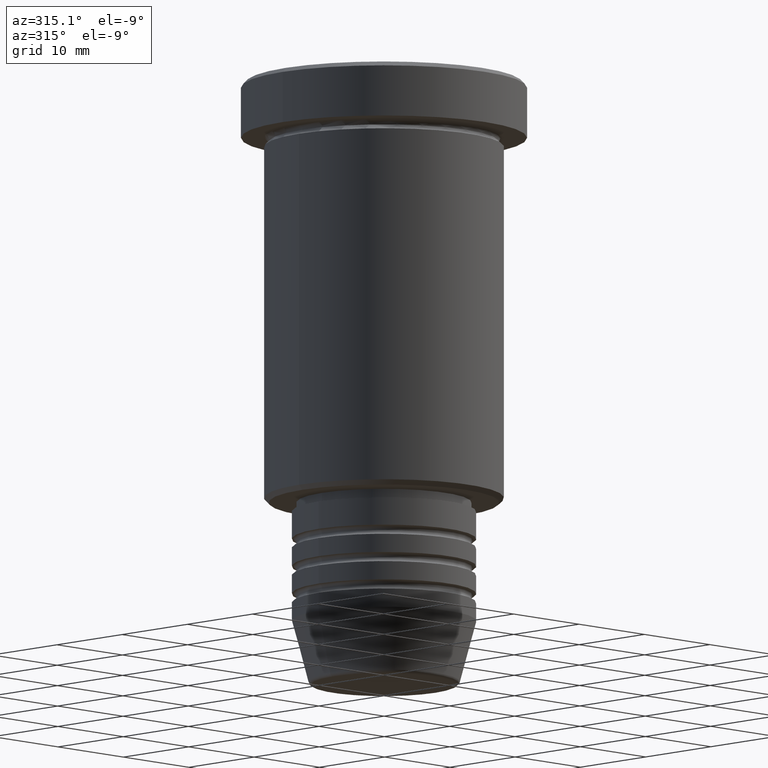
[diagram: clean part render]
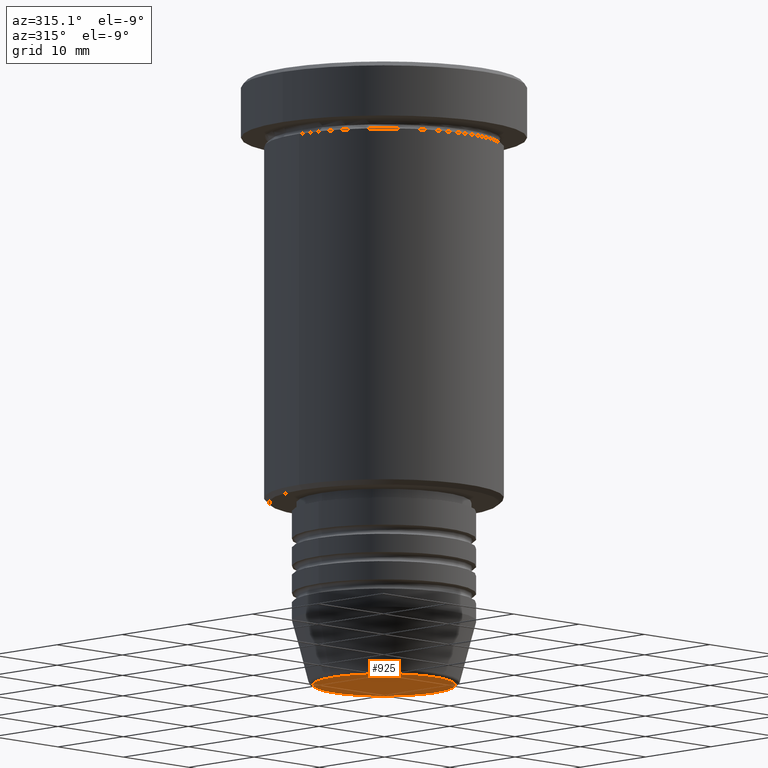
[diagram: same view with one face highlighted and labeled with its STEP entity id]
A machine part, auxiliary view. The second image highlights one B-rep face of the part: STEP entity #925.
In plain terms, the highlighted planar face has unit normal (0, -0, 1).
Its self-contained STEP definition (entity closure, byte-faithful):
#3 = DIRECTION ( 'NONE',  ( 0.000000000000000000, 0.000000000000000000, -1.000000000000000000 ) ) ;
#50 = EDGE_CURVE ( 'NONE', #437, #887, #594, .T. ) ;
#65 = CARTESIAN_POINT ( 'NONE',  ( 7.740692158992654726, 0.000000000000000000, -66.00000000000000000 ) ) ;
#67 = DIRECTION ( 'NONE',  ( 1.000000000000000000, 0.000000000000000000, 0.000000000000000000 ) ) ;
#170 = AXIS2_PLACEMENT_3D ( 'NONE', #432, #3, #67 ) ;
#283 = DIRECTION ( 'NONE',  ( 0.000000000000000000, 0.000000000000000000, -1.000000000000000000 ) ) ;
#310 = DIRECTION ( 'NONE',  ( 0.000000000000000000, -0.000000000000000000, 1.000000000000000000 ) ) ;
#365 = ORIENTED_EDGE ( 'NONE', *, *, #50, .T. ) ;
#432 = CARTESIAN_POINT ( 'NONE',  ( 0.000000000000000000, 0.000000000000000000, -66.00000000000000000 ) ) ;
#437 = VERTEX_POINT ( 'NONE', #469 ) ;
#469 = CARTESIAN_POINT ( 'NONE',  ( -7.740692158992654726, 9.775343368540039135E-16, -66.00000000000000000 ) ) ;
#476 = FACE_OUTER_BOUND ( 'NONE', #1100, .T. ) ;
#503 = DIRECTION ( 'NONE',  ( 1.000000000000000000, 0.000000000000000000, 0.000000000000000000 ) ) ;
#594 = CIRCLE ( 'NONE', #634, 7.740692158992654726 ) ;
#601 = EDGE_CURVE ( 'NONE', #887, #437, #1175, .T. ) ;
#634 = AXIS2_PLACEMENT_3D ( 'NONE', #749, #283, #1112 ) ;
#749 = CARTESIAN_POINT ( 'NONE',  ( 0.000000000000000000, 0.000000000000000000, -66.00000000000000000 ) ) ;
#780 = CARTESIAN_POINT ( 'NONE',  ( 0.000000000000000000, 0.000000000000000000, -66.00000000000000000 ) ) ;
#887 = VERTEX_POINT ( 'NONE', #65 ) ;
#925 = ADVANCED_FACE ( 'NONE', ( #476 ), #993, .F. ) ;
#985 = AXIS2_PLACEMENT_3D ( 'NONE', #780, #310, #503 ) ;
#993 = PLANE ( 'NONE',  #985 ) ;
#1064 = ORIENTED_EDGE ( 'NONE', *, *, #601, .T. ) ;
#1100 = EDGE_LOOP ( 'NONE', ( #1064, #365 ) ) ;
#1112 = DIRECTION ( 'NONE',  ( 1.000000000000000000, 0.000000000000000000, 0.000000000000000000 ) ) ;
#1175 = CIRCLE ( 'NONE', #170, 7.740692158992654726 ) ;